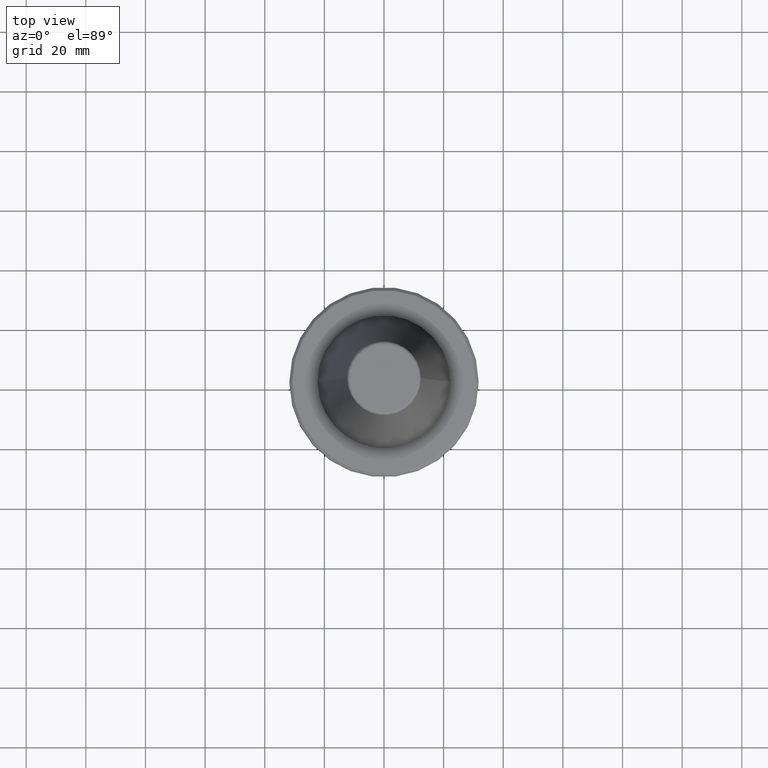
[diagram: clean part render]
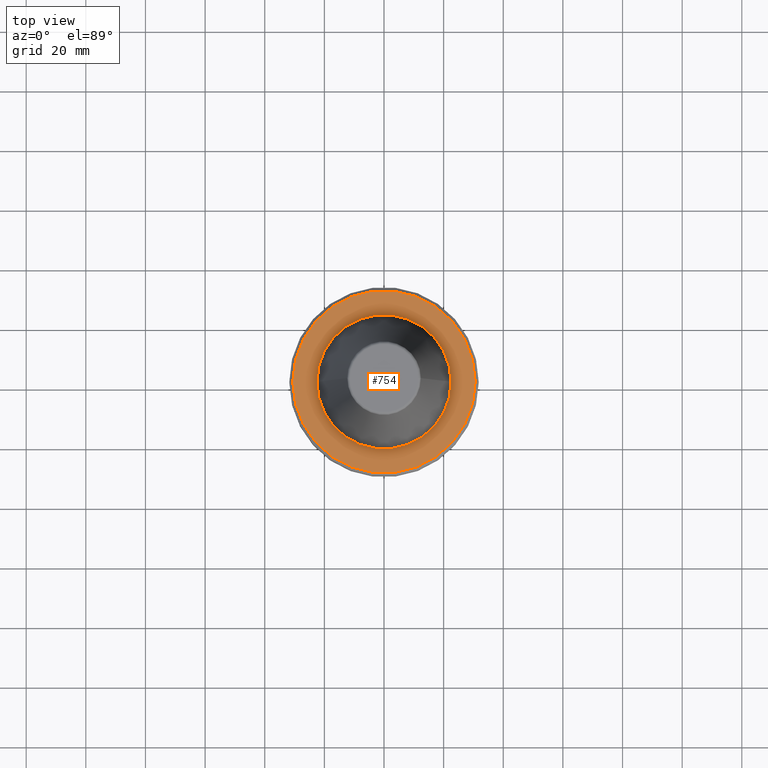
[diagram: same view with one face highlighted and labeled with its STEP entity id]
A machine part, top view. The second image highlights one B-rep face of the part: STEP entity #754.
In plain terms, the highlighted planar face has unit normal (0, -0, 1).
Its self-contained STEP definition (entity closure, byte-faithful):
#1 = DIRECTION ( 'NONE',  ( 1.000000000000000000, 0.0000000000000000000, 0.0000000000000000000 ) ) ;
#17 = CIRCLE ( 'NONE', #55, 22.50000000000000000 ) ;
#39 = AXIS2_PLACEMENT_3D ( 'NONE', #71, #715, #626 ) ;
#55 = AXIS2_PLACEMENT_3D ( 'NONE', #75, #766, #394 ) ;
#71 = CARTESIAN_POINT ( 'NONE',  ( 0.0000000000000000000, 0.0000000000000000000, -3.199999999999994400 ) ) ;
#75 = CARTESIAN_POINT ( 'NONE',  ( 0.0000000000000000000, 0.0000000000000000000, -3.199999999999994400 ) ) ;
#209 = PLANE ( 'NONE',  #544 ) ;
#244 = AXIS2_PLACEMENT_3D ( 'NONE', #1166, #604, #1 ) ;
#268 = DIRECTION ( 'NONE',  ( -0.0000000000000000000, -0.0000000000000000000, 1.000000000000000000 ) ) ;
#286 = AXIS2_PLACEMENT_3D ( 'NONE', #842, #268, #949 ) ;
#377 = VERTEX_POINT ( 'NONE', #541 ) ;
#394 = DIRECTION ( 'NONE',  ( 1.000000000000000000, 0.0000000000000000000, 0.0000000000000000000 ) ) ;
#423 = DIRECTION ( 'NONE',  ( 1.000000000000000000, 0.0000000000000000000, 0.0000000000000000000 ) ) ;
#429 = DIRECTION ( 'NONE',  ( 0.0000000000000000000, -0.0000000000000000000, 1.000000000000000000 ) ) ;
#437 = CARTESIAN_POINT ( 'NONE',  ( 30.58431457505076200, 0.0000000000000000000, -3.199999999999994400 ) ) ;
#537 = CIRCLE ( 'NONE', #39, 30.58431457505076200 ) ;
#541 = CARTESIAN_POINT ( 'NONE',  ( -30.58431457505076200, 3.762817415969875600E-015, -3.199999999999994400 ) ) ;
#544 = AXIS2_PLACEMENT_3D ( 'NONE', #890, #429, #423 ) ;
#604 = DIRECTION ( 'NONE',  ( -0.0000000000000000000, -0.0000000000000000000, 1.000000000000000000 ) ) ;
#626 = DIRECTION ( 'NONE',  ( 1.000000000000000000, 0.0000000000000000000, 0.0000000000000000000 ) ) ;
#629 = ORIENTED_EDGE ( 'NONE', *, *, #688, .F. ) ;
#673 = FACE_OUTER_BOUND ( 'NONE', #1063, .T. ) ;
#681 = CARTESIAN_POINT ( 'NONE',  ( 22.50000000000000000, 0.0000000000000000000, -3.199999999999996600 ) ) ;
#688 = EDGE_CURVE ( 'NONE', #719, #1260, #17, .T. ) ;
#694 = VERTEX_POINT ( 'NONE', #437 ) ;
#709 = EDGE_CURVE ( 'NONE', #694, #377, #537, .T. ) ;
#715 = DIRECTION ( 'NONE',  ( -0.0000000000000000000, -0.0000000000000000000, 1.000000000000000000 ) ) ;
#719 = VERTEX_POINT ( 'NONE', #721 ) ;
#721 = CARTESIAN_POINT ( 'NONE',  ( -22.50000000000000000, 2.755455298081544800E-015, -3.199999999999996600 ) ) ;
#727 = CIRCLE ( 'NONE', #286, 22.50000000000000000 ) ;
#754 = ADVANCED_FACE ( 'NONE', ( #673, #1185 ), #209, .T. ) ;
#766 = DIRECTION ( 'NONE',  ( -0.0000000000000000000, -0.0000000000000000000, 1.000000000000000000 ) ) ;
#842 = CARTESIAN_POINT ( 'NONE',  ( 0.0000000000000000000, 0.0000000000000000000, -3.199999999999994400 ) ) ;
#846 = ORIENTED_EDGE ( 'NONE', *, *, #948, .F. ) ;
#890 = CARTESIAN_POINT ( 'NONE',  ( 0.0000000000000000000, 0.0000000000000000000, -3.200000000000000200 ) ) ;
#899 = EDGE_CURVE ( 'NONE', #377, #694, #1037, .T. ) ;
#948 = EDGE_CURVE ( 'NONE', #1260, #719, #727, .T. ) ;
#949 = DIRECTION ( 'NONE',  ( 1.000000000000000000, 0.0000000000000000000, 0.0000000000000000000 ) ) ;
#952 = EDGE_LOOP ( 'NONE', ( #846, #629 ) ) ;
#1037 = CIRCLE ( 'NONE', #244, 30.58431457505076200 ) ;
#1063 = EDGE_LOOP ( 'NONE', ( #1163, #1140 ) ) ;
#1140 = ORIENTED_EDGE ( 'NONE', *, *, #899, .T. ) ;
#1163 = ORIENTED_EDGE ( 'NONE', *, *, #709, .T. ) ;
#1166 = CARTESIAN_POINT ( 'NONE',  ( 0.0000000000000000000, 0.0000000000000000000, -3.199999999999994400 ) ) ;
#1185 = FACE_BOUND ( 'NONE', #952, .T. ) ;
#1260 = VERTEX_POINT ( 'NONE', #681 ) ;